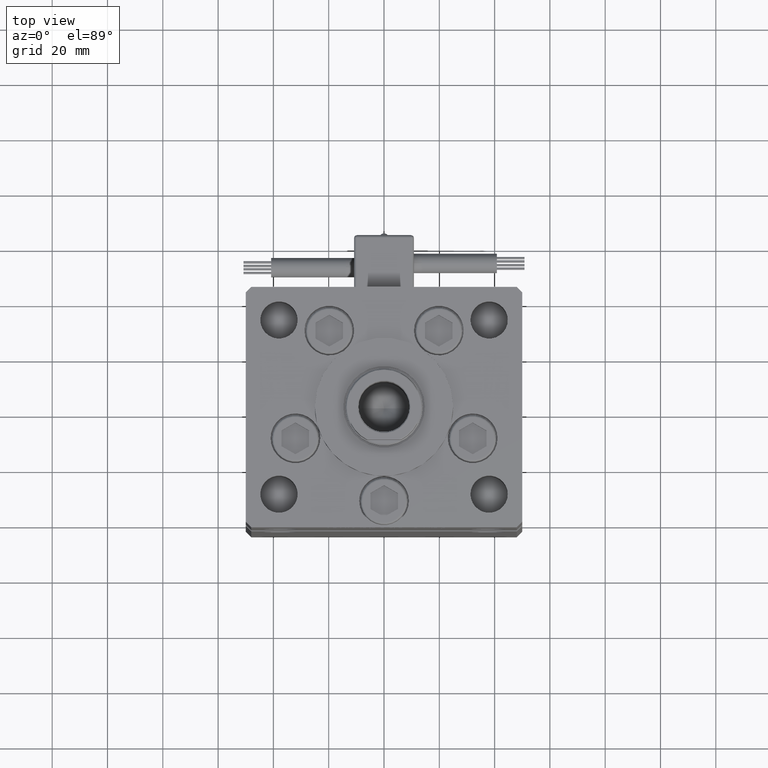
[diagram: clean part render]
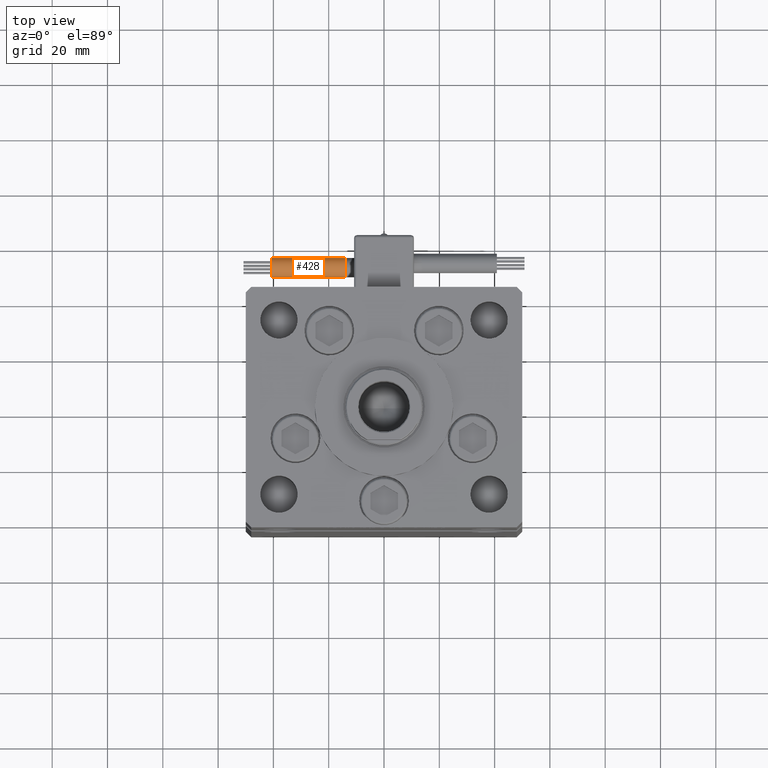
[diagram: same view with one face highlighted and labeled with its STEP entity id]
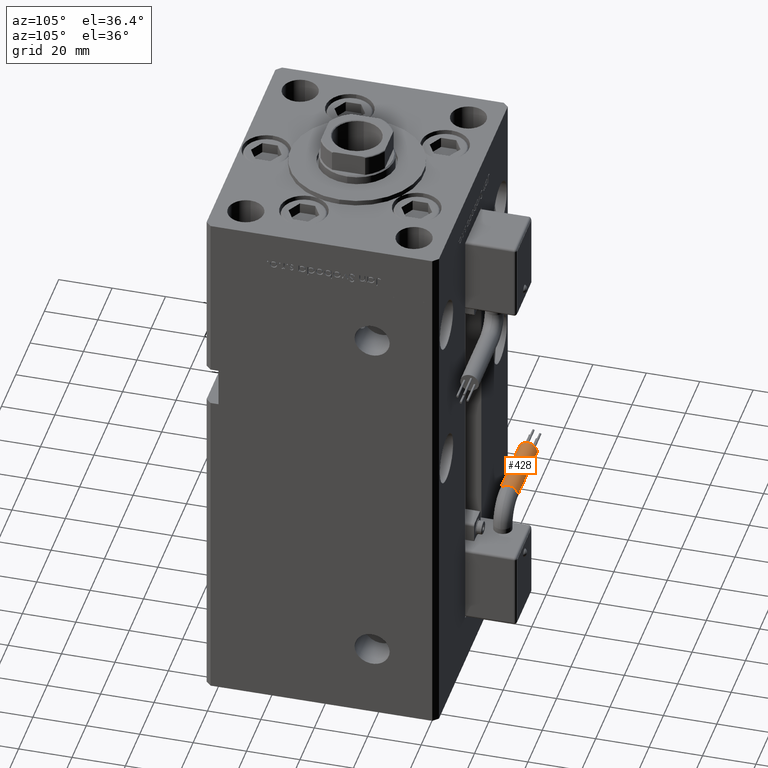
[diagram: same view with one face highlighted and labeled with its STEP entity id]
A machine part, top view. The second image highlights one B-rep face of the part: STEP entity #428.
A second angle (auxiliary view) of the same face is appended — the face is thin or edge-on in the first view.
In plain terms, the highlighted cylindrical surface (edge-blend (fillet) strip) has radius 3.5 mm, axis along (-1, -0, -0).
Its self-contained STEP definition (entity closure, byte-faithful):
#83 = ORIENTED_EDGE ( 'NONE', *, *, #40625, .F. ) ;
#241 = ORIENTED_EDGE ( 'NONE', *, *, #21181, .T. ) ;
#428 = ADVANCED_FACE ( 'NONE', ( #54648 ), #51192, .T. ) ;
#610 = DIRECTION ( 'NONE',  ( 1.000000000000000000, 0.000000000000000000, 2.220446049250000002E-16 ) ) ;
#5755 = EDGE_CURVE ( 'NONE', #5886, #15662, #28977, .T. ) ;
#5835 = AXIS2_PLACEMENT_3D ( 'NONE', #34157, #8771, #56118 ) ;
#5886 = VERTEX_POINT ( 'NONE', #53979 ) ;
#6486 = DIRECTION ( 'NONE',  ( 1.000000000000000000, -2.599999999999999847E-16, 2.220446049250000002E-16 ) ) ;
#8771 = DIRECTION ( 'NONE',  ( 1.000000000000000000, 0.000000000000000000, 2.220446049250000002E-16 ) ) ;
#9487 = CIRCLE ( 'NONE', #5835, 3.500000000000003109 ) ;
#14090 = CIRCLE ( 'NONE', #44127, 3.500000000000003109 ) ;
#14157 = VERTEX_POINT ( 'NONE', #17011 ) ;
#14972 = DIRECTION ( 'NONE',  ( 1.000000000000000000, -2.599999999999999847E-16, 2.220446049250000002E-16 ) ) ;
#15571 = CARTESIAN_POINT ( 'NONE',  ( 13.79999999999999893, 42.00000000000000000, -65.00000000000000000 ) ) ;
#15662 = VERTEX_POINT ( 'NONE', #55996 ) ;
#17011 = CARTESIAN_POINT ( 'NONE',  ( 13.79999999999999893, 38.50000000000000000, -65.00000000000000000 ) ) ;
#17704 = VERTEX_POINT ( 'NONE', #20647 ) ;
#19517 = ORIENTED_EDGE ( 'NONE', *, *, #5755, .T. ) ;
#20647 = CARTESIAN_POINT ( 'NONE',  ( 40.80000000000000426, 38.50000000000000000, -65.00000000000000000 ) ) ;
#20902 = CIRCLE ( 'NONE', #30943, 3.500000000000003109 ) ;
#21158 = DIRECTION ( 'NONE',  ( 0.000000000000000000, 0.000000000000000000, -1.000000000000000000 ) ) ;
#21181 = EDGE_CURVE ( 'NONE', #35572, #5886, #9487, .T. ) ;
#22262 = EDGE_CURVE ( 'NONE', #14157, #35572, #14090, .T. ) ;
#22907 = EDGE_LOOP ( 'NONE', ( #37320, #241, #19517, #83, #28333 ) ) ;
#24688 = CARTESIAN_POINT ( 'NONE',  ( 13.79999999999999893, 42.00000000000000000, -65.00000000000000000 ) ) ;
#27157 = VECTOR ( 'NONE', #14972, 1000.000000000000000 ) ;
#28333 = ORIENTED_EDGE ( 'NONE', *, *, #32563, .F. ) ;
#28977 = LINE ( 'NONE', #45825, #44591 ) ;
#29926 = AXIS2_PLACEMENT_3D ( 'NONE', #15571, #46073, #33245 ) ;
#30943 = AXIS2_PLACEMENT_3D ( 'NONE', #51967, #610, #21158 ) ;
#32563 = EDGE_CURVE ( 'NONE', #14157, #17704, #36653, .T. ) ;
#32915 = CARTESIAN_POINT ( 'NONE',  ( 13.79999999999999716, 38.50000000000000000, -65.00000000000000000 ) ) ;
#33245 = DIRECTION ( 'NONE',  ( -4.956352788505158337E-16, -1.000000000000000000, 0.000000000000000000 ) ) ;
#34157 = CARTESIAN_POINT ( 'NONE',  ( 13.79999999999999893, 42.00000000000000000, -65.00000000000000000 ) ) ;
#35572 = VERTEX_POINT ( 'NONE', #42530 ) ;
#36653 = LINE ( 'NONE', #32915, #27157 ) ;
#37320 = ORIENTED_EDGE ( 'NONE', *, *, #22262, .T. ) ;
#40625 = EDGE_CURVE ( 'NONE', #17704, #15662, #20902, .T. ) ;
#42094 = DIRECTION ( 'NONE',  ( 1.000000000000000000, 0.000000000000000000, 2.220446049250000002E-16 ) ) ;
#42530 = CARTESIAN_POINT ( 'NONE',  ( 13.79999999999999893, 42.00000000000000000, -68.50000000000000000 ) ) ;
#44127 = AXIS2_PLACEMENT_3D ( 'NONE', #24688, #42094, #54665 ) ;
#44591 = VECTOR ( 'NONE', #6486, 1000.000000000000000 ) ;
#45825 = CARTESIAN_POINT ( 'NONE',  ( 13.80000000000000071, 45.50000000000000711, -65.00000000000000000 ) ) ;
#46073 = DIRECTION ( 'NONE',  ( 1.000000000000000000, -2.599999999999999847E-16, 2.220446049250000002E-16 ) ) ;
#51192 = CYLINDRICAL_SURFACE ( 'NONE', #29926, 3.500000000000003109 ) ;
#51967 = CARTESIAN_POINT ( 'NONE',  ( 40.80000000000000426, 42.00000000000000000, -65.00000000000000000 ) ) ;
#53979 = CARTESIAN_POINT ( 'NONE',  ( 13.79999999999999893, 45.50000000000000711, -65.00000000000000000 ) ) ;
#54648 = FACE_OUTER_BOUND ( 'NONE', #22907, .T. ) ;
#54665 = DIRECTION ( 'NONE',  ( 0.000000000000000000, 0.000000000000000000, -1.000000000000000000 ) ) ;
#55996 = CARTESIAN_POINT ( 'NONE',  ( 40.80000000000000426, 45.50000000000000711, -65.00000000000000000 ) ) ;
#56118 = DIRECTION ( 'NONE',  ( 0.000000000000000000, 0.000000000000000000, -1.000000000000000000 ) ) ;